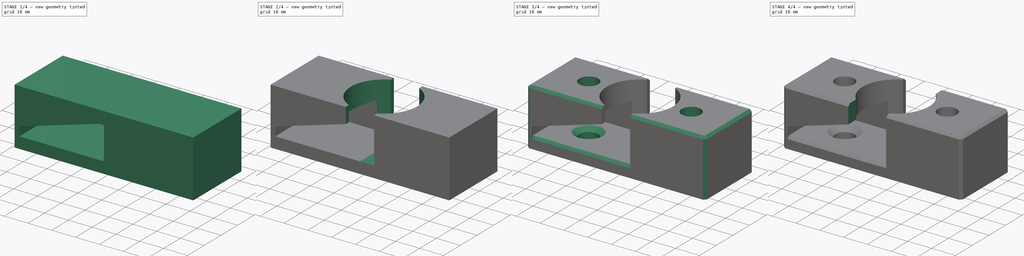
[diagram: build sequence overview — one tinted view per stage of 4, left to right]
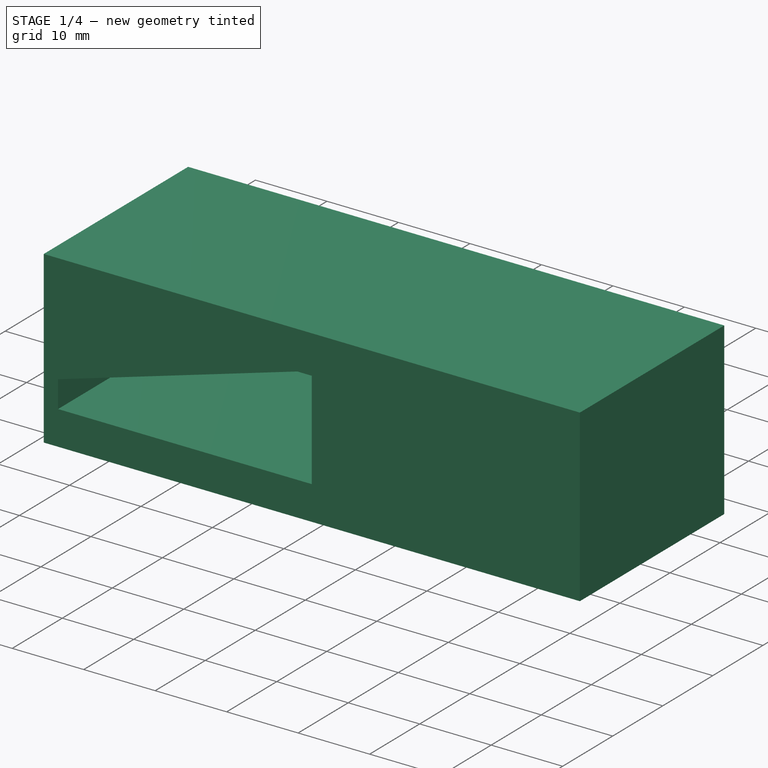
[diagram: stage 1 of 4 — iso view after this stage's code; geometry added in this stage tinted green]
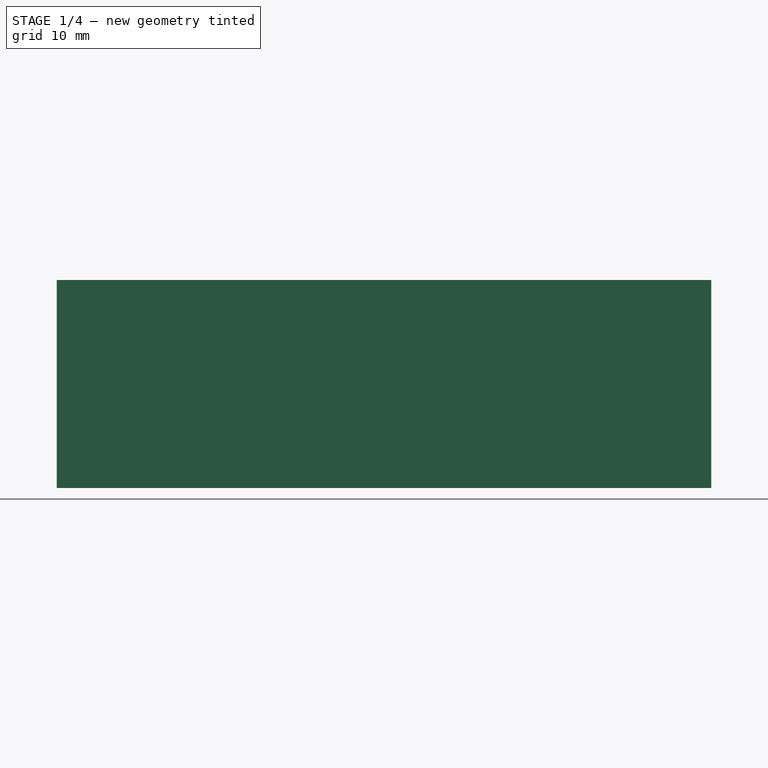
[diagram: stage 1 of 4 — front view after this stage's code; geometry added in this stage tinted green]
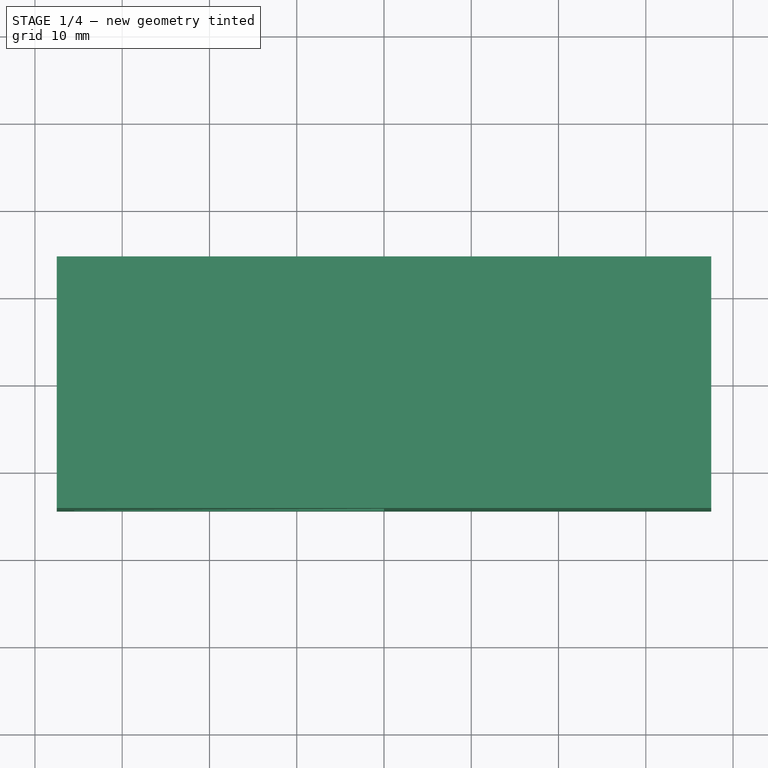
[diagram: stage 1 of 4 — top view after this stage's code; geometry added in this stage tinted green]
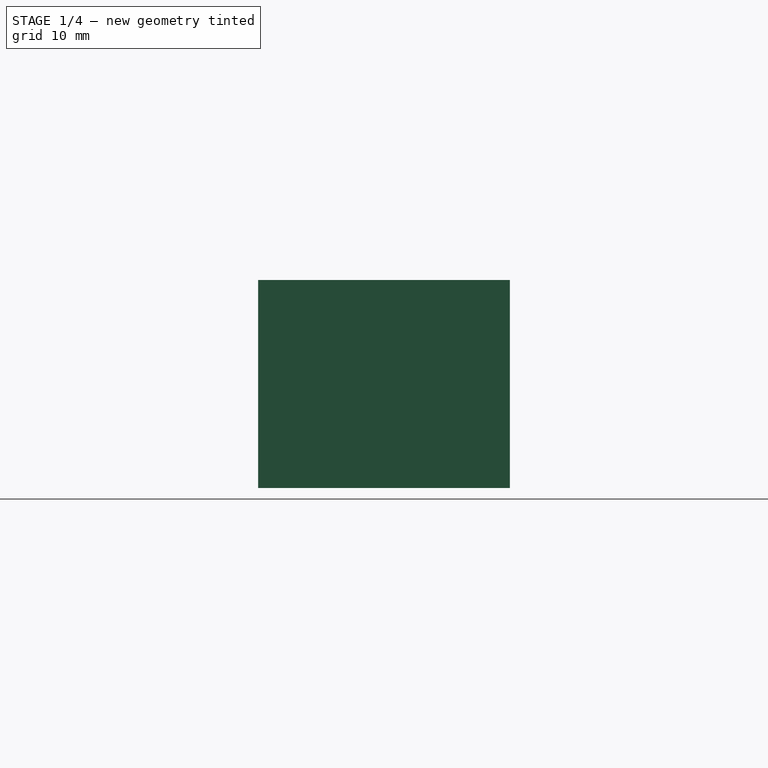
[diagram: stage 1 of 4 — right view after this stage's code; geometry added in this stage tinted green]
FCSTD DOCUMENT  (FreeCAD 0.20R29410 (Git))
Label: Reel_Holder_Symetric_Twist_Parametric
License: All rights reserved
LicenseURL: http://en.wikipedia.org/wiki/All_rights_reserved
objects: Sketcher::SketchObject×8, PartDesign::Pocket×7, PartDesign::Chamfer×2, App::Part×1, PartDesign::Pad×1, Spreadsheet::Sheet×1, PartDesign::Body×1
note: 29 computed .brp shape members not serialized (recipe doc carries the construction recipe); baked Part::Feature solids carry a one-line shape summary decoded from their .brp

FEATURE [App::Part] Part
  Origin = -> Origin
FEATURE [Sketcher::SketchObject] Sketch  label="Sketch_Body"
  FullyConstrained = true
  MapMode = 5
  Support = -> [XY_Plane001]
  expr: Constraints[10] = <<pram>>.Body_Width
  expr: Constraints[9] = <<pram>>.Body_Length
  sketch-geometry (4):
    g0: LineSegment StartX=-37.5 StartY=14.4225 StartZ=0 EndX=37.5 EndY=14.4225 EndZ=0
    g1: LineSegment StartX=37.5 StartY=14.4225 StartZ=0 EndX=37.5 EndY=-14.4225 EndZ=0
    g2: LineSegment StartX=37.5 StartY=-14.4225 StartZ=0 EndX=-37.5 EndY=-14.4225 EndZ=0
    g3: LineSegment StartX=-37.5 StartY=-14.4225 StartZ=0 EndX=-37.5 EndY=14.4225 EndZ=0
  constraints (11):
    c: Coincident(g0,g1)
    c: Coincident(g1,g2)
    c: Coincident(g2,g3)
    c: Coincident(g3,g0)
    c: Horizontal(g0)
    c: Horizontal(g2)
    c: Vertical(g1)
    c: Vertical(g3)
    c: Symmetric(g0,g1,g-1)
    c: DistanceX(g0,g0) = 75
    c: DistanceY(g1,g1) = 28.845
FEATURE [PartDesign::Pad] Pad  label="Pad_Body"
  Direction = (0,0,1)
  Length = 23.845
  Length2 = 10
  Profile = -> Sketch
  ReferenceAxis = -> Sketch [N_Axis]
  Type = 0
  expr: Length = <<pram>>.Body_Height
FEATURE [Sketcher::SketchObject] Sketch001  label="Sketch_Front_Angle_Breach"
  AttachmentOffset = pos=(0,0,-9.6535) rot=(0,0,1;0rad)
  FullyConstrained = true
  MapMode = 5
  Placement = pos=(0,9.6535,2.1e-15) rot=(1,0,0;1.5708rad)
  Support = -> [XZ_Plane001]
  expr: .AttachmentOffset.Base.z = -(<<pram>>.Body_Width / 2 - <<pram>>.Wall_Thickness)
  expr: Constraints[10] = <<pram>>.Body_Height - <<pram>>.Wall_Thickness
  expr: Constraints[11] = <<pram>>.Twist_Opening_Horiz_From_Origin
  expr: Constraints[8] = <<pram>>.Twist_Opening_Vert_Small_Side_Height
  expr: Constraints[9] = <<pram>>.Wall_Thickness
  sketch-geometry (4):
    g0: LineSegment StartX=0 StartY=4.769 StartZ=0 EndX=-35.5 EndY=4.769 EndZ=0
    g1: LineSegment StartX=-35.5 StartY=4.769 StartZ=0 EndX=-35.5 EndY=8.538 EndZ=0
    g2: LineSegment StartX=-35.5 StartY=8.538 StartZ=0 EndX=0 EndY=19.076 EndZ=0
    g3: LineSegment StartX=0 StartY=19.076 StartZ=0 EndX=0 EndY=4.769 EndZ=0
  constraints (12):
    c: PointOnObject(g0,g-2)
    c: Horizontal(g0)
    c: Coincident(g0,g1)
    c: Coincident(g1,g2)
    c: PointOnObject(g2,g-2)
    c: Coincident(g2,g3)
    c: Coincident(g3,g0)
    c: Vertical(g0,g1)
    c: DistanceY(g1,g1) = 3.769
    c: DistanceY(g-1,g0) = 4.769
    c: DistanceY(g-1,g2) = 19.076
    c: DistanceX(g0,g-1) = 35.5
FEATURE [PartDesign::Pocket] Pocket  label="Pocket_Front_Angle_Breach"
  BaseFeature = -> Pad
  Direction = (0,1,2e-16)
  Length = 24.076
  Length2 = 5
  Profile = -> Sketch001
  ReferenceAxis = -> Sketch001 [N_Axis]
  Reversed = true
  Type = 0
  expr: Length = <<pram>>.Body_Width - <<pram>>.Wall_Thickness
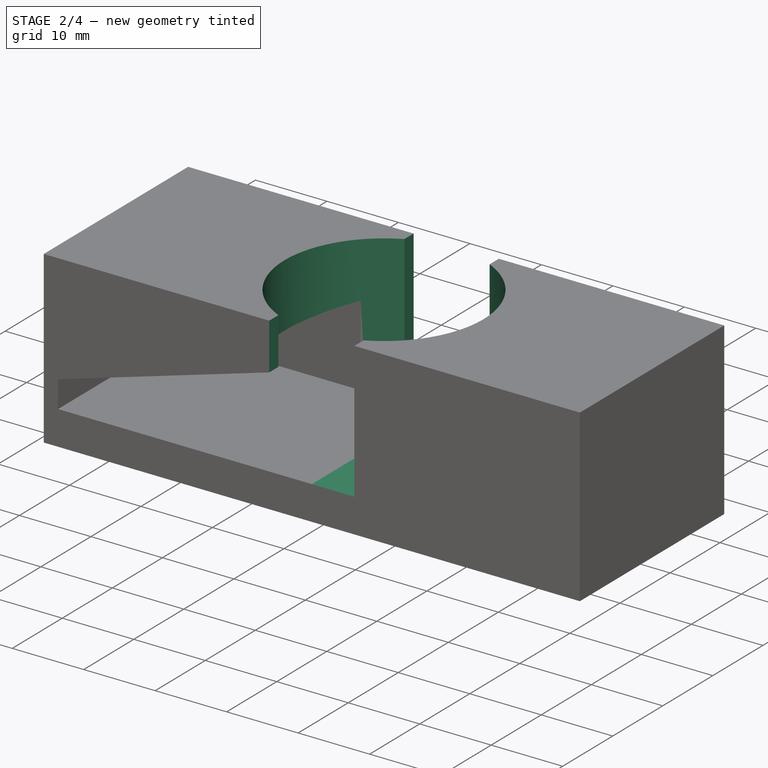
[diagram: stage 2 of 4 — iso view after this stage's code; geometry added in this stage tinted green]
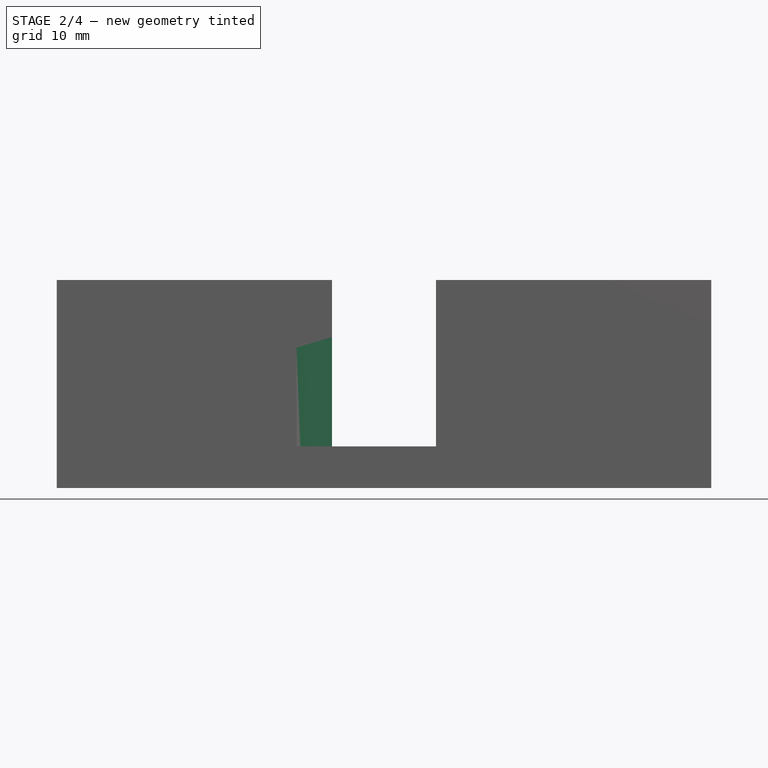
[diagram: stage 2 of 4 — front view after this stage's code; geometry added in this stage tinted green]
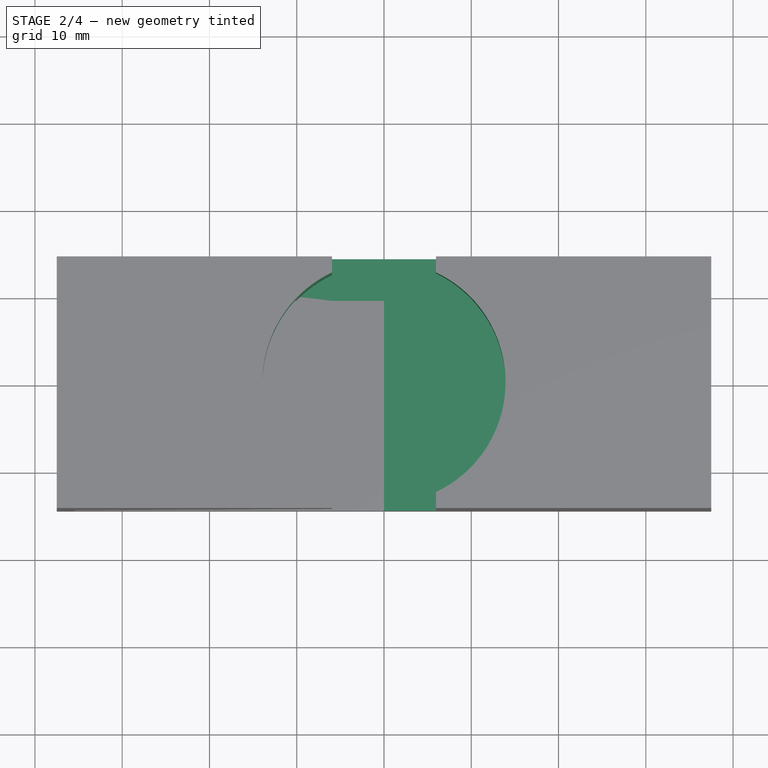
[diagram: stage 2 of 4 — top view after this stage's code; geometry added in this stage tinted green]
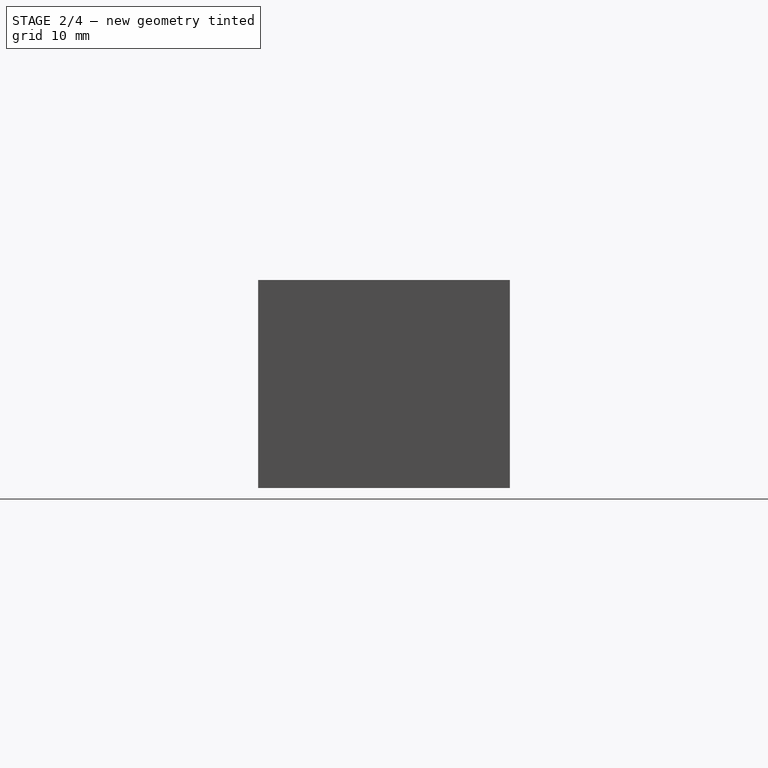
[diagram: stage 2 of 4 — right view after this stage's code; geometry added in this stage tinted green]
FEATURE [Sketcher::SketchObject] Sketch002  label="Sketch_Back_Angle_Breach"
  AttachmentOffset = pos=(0,0,9.6535) rot=(0,0,1;0rad)
  FullyConstrained = true
  MapMode = 5
  Placement = pos=(0,-9.6535,-2.1e-15) rot=(1,0,0;1.5708rad)
  Support = -> [XZ_Plane001]
  expr: .AttachmentOffset.Base.z = <<pram>>.Body_Width / 2 - <<pram>>.Wall_Thickness
  expr: Constraints[10] = <<pram>>.Twist_Opening_Vert_Small_Side_Height
  expr: Constraints[11] = <<pram>>.Twist_Opening_Horiz_From_Origin
  expr: Constraints[8] = <<pram>>.Body_Height - <<pram>>.Wall_Thickness
  expr: Constraints[9] = <<pram>>.Wall_Thickness
  sketch-geometry (4):
    g0: LineSegment StartX=0 StartY=4.769 StartZ=0 EndX=0 EndY=19.076 EndZ=0
    g1: LineSegment StartX=0 StartY=19.076 StartZ=0 EndX=35.5 EndY=8.538 EndZ=0
    g2: LineSegment StartX=35.5 StartY=8.538 StartZ=0 EndX=35.5 EndY=4.769 EndZ=0
    g3: LineSegment StartX=35.5 StartY=4.769 StartZ=0 EndX=0 EndY=4.769 EndZ=0
  constraints (12):
    c: PointOnObject(g0,g-2)
    c: Vertical(g0)
    c: Coincident(g0,g1)
    c: Coincident(g1,g2)
    c: Coincident(g2,g3)
    c: Coincident(g3,g0)
    c: Horizontal(g3)
    c: Vertical(g1,g2)
    c: DistanceY(g-1,g0) = 19.076
    c: DistanceY(g-1,g0) = 4.769
    c: DistanceY(g2,g1) = 3.769
    c: DistanceX(g0,g2) = 35.5
FEATURE [PartDesign::Pocket] Pocket001  label="Pocket_Back_Angle_Breach"
  BaseFeature = -> Pocket
  Direction = (0,1,2e-16)
  Length = 24.076
  Length2 = 5
  Profile = -> Sketch002
  ReferenceAxis = -> Sketch002 [N_Axis]
  Type = 0
  expr: Length = <<pram>>.Body_Width - <<pram>>.Wall_Thickness
FEATURE [Sketcher::SketchObject] Sketch003  label="Sketch_Circular_Opening"
  AttachmentOffset = pos=(0,0,23.845) rot=(0,0,1;0rad)
  FullyConstrained = true
  MapMode = 5
  Placement = pos=(0,0,23.845) rot=(0,0,1;0rad)
  Support = -> [XY_Plane001]
  expr: .AttachmentOffset.Base.z = <<pram>>.Body_Height
  expr: Constraints[1] = <<pram>>.Circular_Opening_Diameter
  sketch-geometry (1):
    g0: Circle CenterX=0 CenterY=0 CenterZ=0 NormalX=0 NormalY=0 NormalZ=1 AngleXU=0 Radius=13.9225
  constraints (2):
    c: Coincident(g0,g-1)
    c: Diameter(g0) = 27.845
FEATURE [PartDesign::Pocket] Pocket002  label="Pocket_Circular_Opening"
  BaseFeature = -> Pocket001
  Direction = (0,0,-1)
  Length = 19.076
  Length2 = 5
  Profile = -> Sketch003
  ReferenceAxis = -> Sketch003 [N_Axis]
  Type = 0
  expr: Length = <<pram>>.Body_Height - <<pram>>.Wall_Thickness
FEATURE [Sketcher::SketchObject] Sketch004  label="Sketch_Through_Cut"
  FullyConstrained = true
  MapMode = 5
  Placement = pos=(0,0,0) rot=(1,0,0;1.5708rad)
  Support = -> [XZ_Plane001]
  expr: Constraints[10] = <<pram>>.Through_Cut_Height
  expr: Constraints[8] = <<pram>>.Wall_Thickness
  expr: Constraints[9] = <<pram>>.Through_Cut_Width
  sketch-geometry (4):
    g0: LineSegment StartX=-5.96125 StartY=23.845 StartZ=0 EndX=5.96125 EndY=23.845 EndZ=0
    g1: LineSegment StartX=5.96125 StartY=23.845 StartZ=0 EndX=5.96125 EndY=4.769 EndZ=0
    g2: LineSegment StartX=5.96125 StartY=4.769 StartZ=0 EndX=-5.96125 EndY=4.769 EndZ=0
    g3: LineSegment StartX=-5.96125 StartY=4.769 StartZ=0 EndX=-5.96125 EndY=23.845 EndZ=0
  constraints (11):
    c: Coincident(g0,g1)
    c: Coincident(g1,g2)
    c: Coincident(g2,g3)
    c: Coincident(g3,g0)
    c: Horizontal(g2)
    c: Vertical(g1)
    c: Vertical(g3)
    c: Symmetric(g0,g0,g-2)
    c: DistanceY(g-1,g1) = 4.769
    c: DistanceX(g0,g0) = 11.9225
    c: DistanceY(g1,g1) = 19.076
FEATURE [PartDesign::Pocket] Pocket003  label="Pocket_Through_Cut"
  BaseFeature = -> Pocket002
  Direction = (0,1,2e-16)
  Length = 14.4225
  Length2 = 5
  Midplane = true
  Profile = -> Sketch004
  ReferenceAxis = -> Sketch004 [N_Axis]
  Type = 1
  expr: Length = <<pram>>.Body_Width / 2
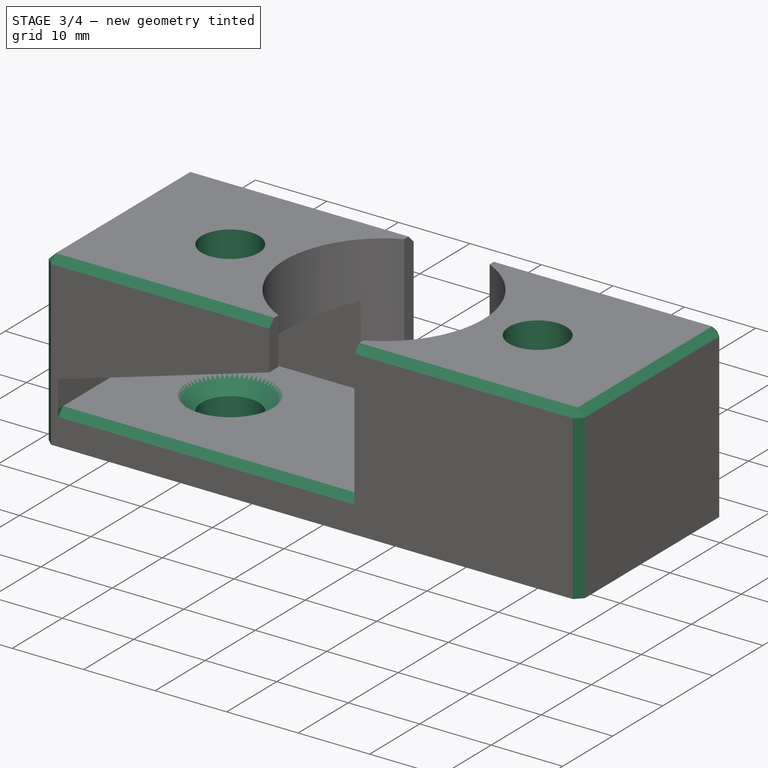
[diagram: stage 3 of 4 — iso view after this stage's code; geometry added in this stage tinted green]
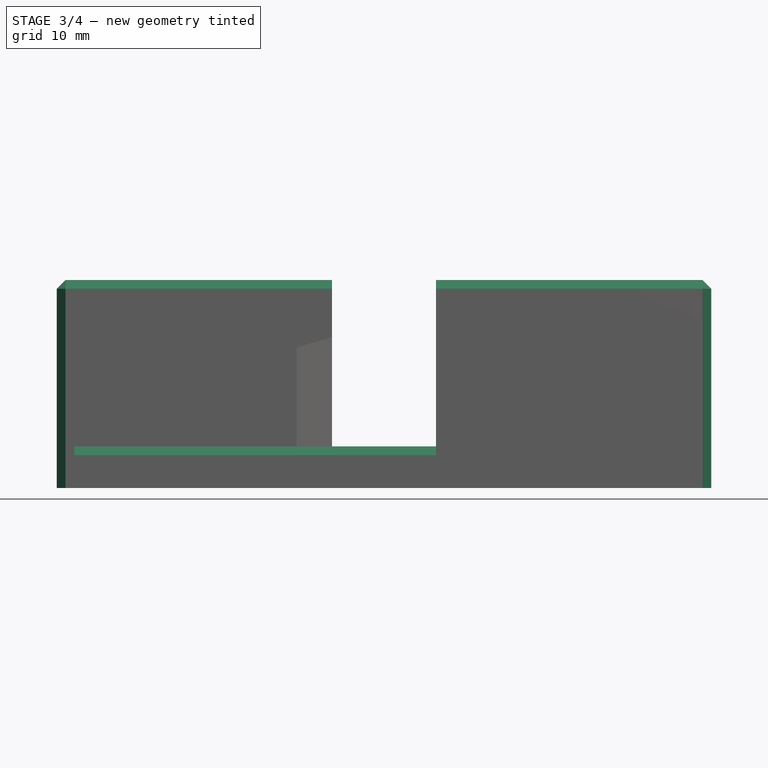
[diagram: stage 3 of 4 — front view after this stage's code; geometry added in this stage tinted green]
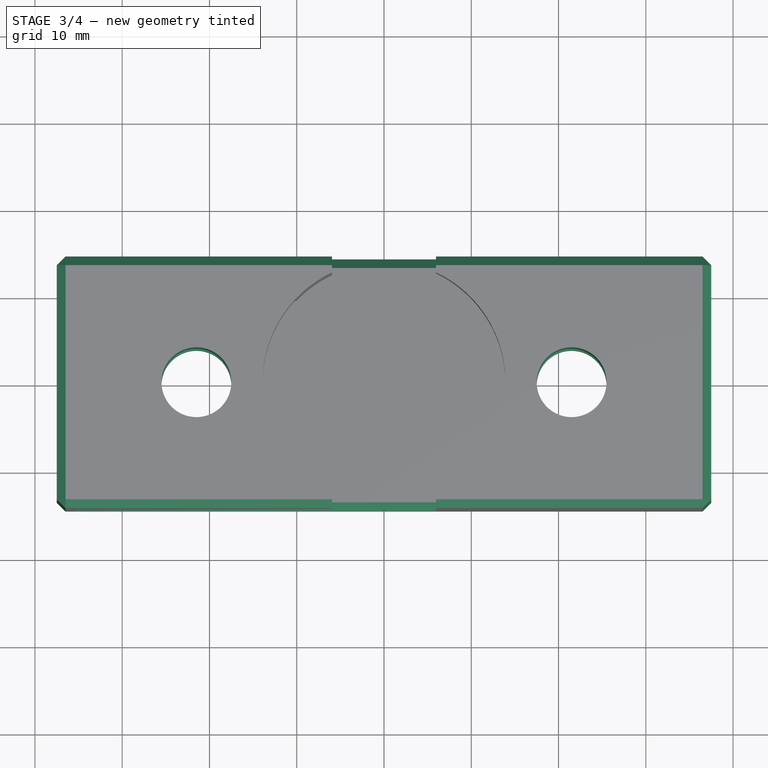
[diagram: stage 3 of 4 — top view after this stage's code; geometry added in this stage tinted green]
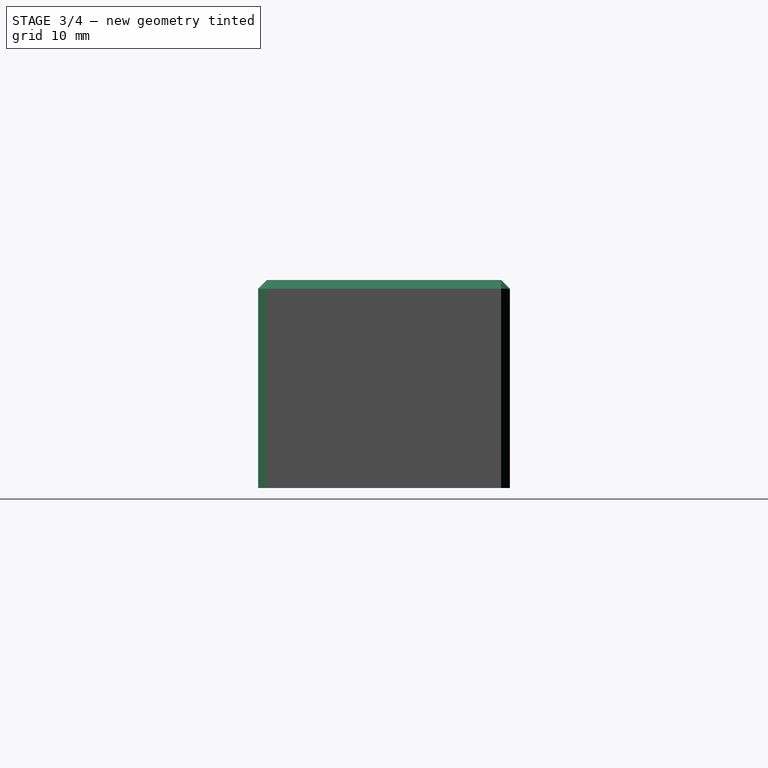
[diagram: stage 3 of 4 — right view after this stage's code; geometry added in this stage tinted green]
FEATURE [Sketcher::SketchObject] Sketch005  label="Sketch_Screw_Holes"
  AttachmentOffset = pos=(0,0,23.845) rot=(0,0,1;0rad)
  FullyConstrained = true
  MapMode = 5
  Placement = pos=(0,0,23.845) rot=(0,0,1;0rad)
  Support = -> [XY_Plane001]
  expr: .AttachmentOffset.Base.z = <<pram>>.Body_Height
  expr: Constraints[2] = <<pram>>.Drill_Holes_Diameter
  expr: Constraints[4] = <<pram>>.Drill_Holes_Horiz_From_Origin + <<pram>>.Drill_Holes_Diameter / 4
  sketch-geometry (2):
    g0: Circle CenterX=-21.5 CenterY=0 CenterZ=0 NormalX=0 NormalY=0 NormalZ=1 AngleXU=0 Radius=4
    g1: Circle CenterX=21.5 CenterY=0 CenterZ=0 NormalX=0 NormalY=0 NormalZ=1 AngleXU=0 Radius=4
  constraints (5):
    c: PointOnObject(g0,g-1)
    c: Equal(g0,g1)
    c: Diameter(g1) = 8
    c: Symmetric(g1,g0,g-1)
    c: DistanceX(g0,g-1) = 21.5
FEATURE [PartDesign::Pocket] Pocket004  label="Pocket_Screw_Holes"
  BaseFeature = -> Pocket003
  Direction = (0,0,-1)
  Length = 5
  Length2 = 5
  Profile = -> Sketch005
  ReferenceAxis = -> Sketch005 [N_Axis]
  Type = 1
FEATURE [Spreadsheet::Sheet] Spreadsheet  label="pram"
  cells = A1=Body_Length (Change This Cell or B11 Only); B1(Body_Length)=75; C1=Safe range should be 50.00mm - 85.00mm. Modeled @ 65.00mm. Inner length will be 4mm less than this Number (B1).; A2=Body_Width; B2(Body_Width)==Body_Length * 0.3846; C2=Calculated. Do not change!; A3=Body_Height; B3(Body_Height)==Body_Width - 5; C3=Calculated. Do not change!; A4=Wall_Thickness; B4(Wall_Thickness)==Body_Height / 5; C4=Calculated. Do not change!; A5=Twist_Opening_Vert_Small_Side_Height; B5(Twist_Opening_Vert_Small_Side_Height)==Wall_Thickness - 1; C5=Calculated. Do not change!; A6=Twist_Opening_Horiz_From_Origin; B6(Twist_Opening_Horiz_From_Origin)==Body_Length / 2 - 2; C6=Calculated. Do not change!; A7=Circular_Opening_Diameter; B7(Circular_Opening_Diameter)==Body_Width - 1; C7=Calculated. Do not change!; A8=Through_Cut_Width; B8(Through_Cut_Width)==Body_Height / 2; C8=Calculated. Do not change!; A9=Through_Cut_Height; B9(Through_Cut_Height)==Body_Height - Wall_Thickness; C9=Calculated. Do not change!; A10=Drill_Holes_Horiz_From_Origin; B10(Drill_Holes_Horiz_From_Origin)==Body_Length / 4 + 0.75; C10=Calculated. Do not change!; A11=Drill_Holes_Diameter (Change This Cell or B1 Only); B11(Drill_Holes_Diameter)=8; C11=Safe Range should be 3mm - 10mm. Modeled @ 6mm.
FEATURE [PartDesign::Chamfer] Chamfer  label="Chamfer_Inside-Screw_Holes"
  Angle = 45
  Base = -> Pocket004 [Edge59,Edge39]
  BaseFeature = -> Pocket004
  ChamferType = 0
  FlipDirection = false
  Size = 2
  Size2 = 1
  SupportTransform = false
  UseAllEdges = false
  expr: Size = <<pram>>.Drill_Holes_Diameter * 0.25
FEATURE [PartDesign::Chamfer] Chamfer001  label="Chamfer_Top_and_Corners"
  Angle = 45
  Base = -> Chamfer [Edge19,Edge25,Edge51,Edge60,Edge59,Edge48,Edge5,Edge77,Edge64,Edge18,Edge47,Edge26]
  BaseFeature = -> Chamfer
  ChamferType = 0
  FlipDirection = false
  Size = 1
  Size2 = 1
  SupportTransform = false
  UseAllEdges = false
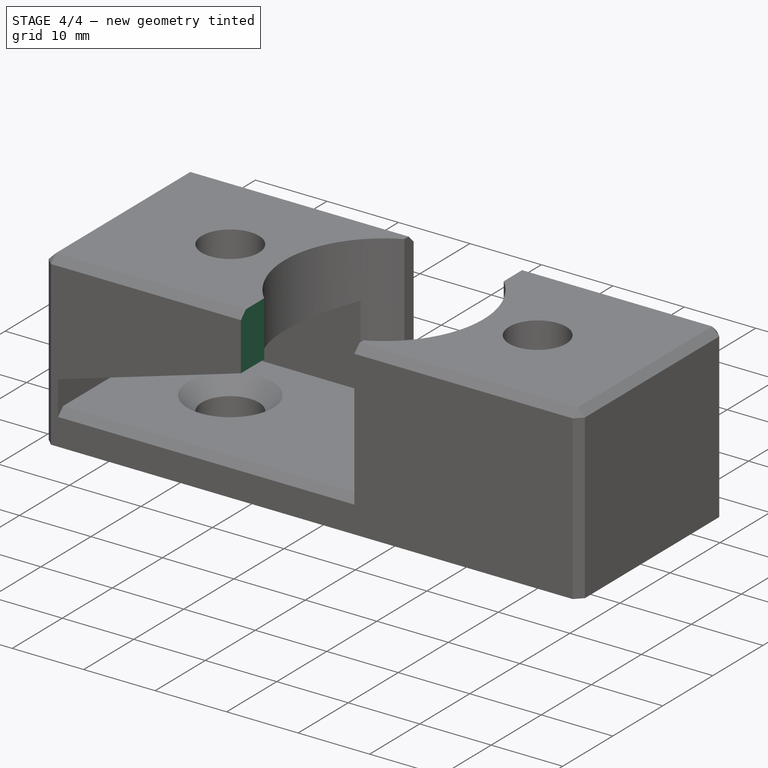
[diagram: stage 4 of 4 — iso view after this stage's code; geometry added in this stage tinted green]
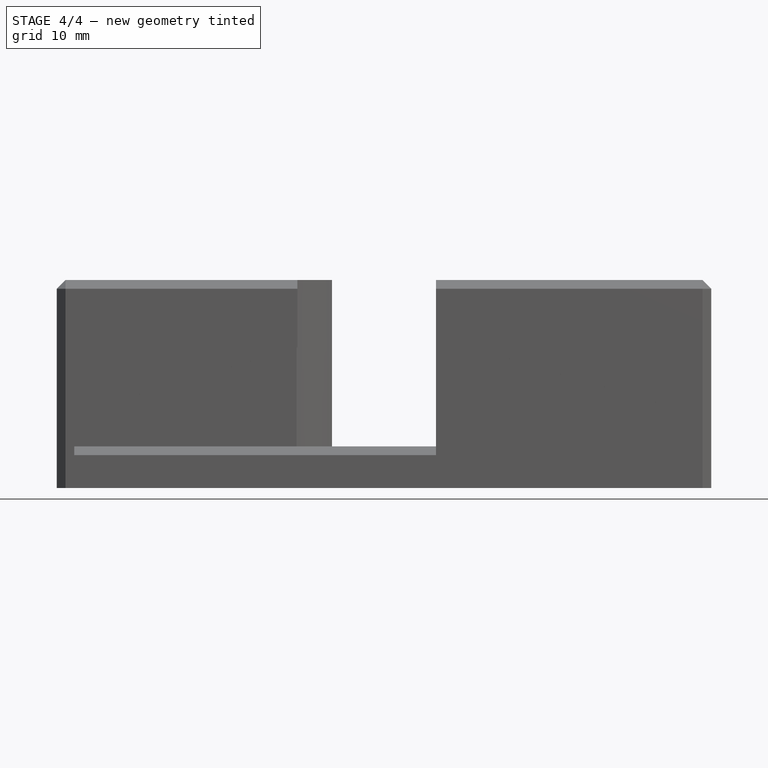
[diagram: stage 4 of 4 — front view after this stage's code; geometry added in this stage tinted green]
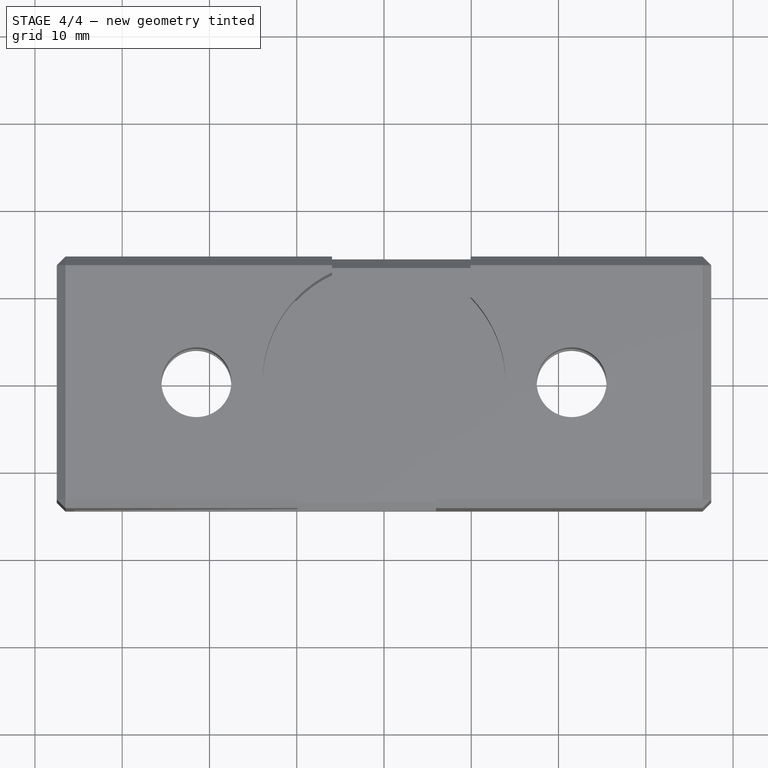
[diagram: stage 4 of 4 — top view after this stage's code; geometry added in this stage tinted green]
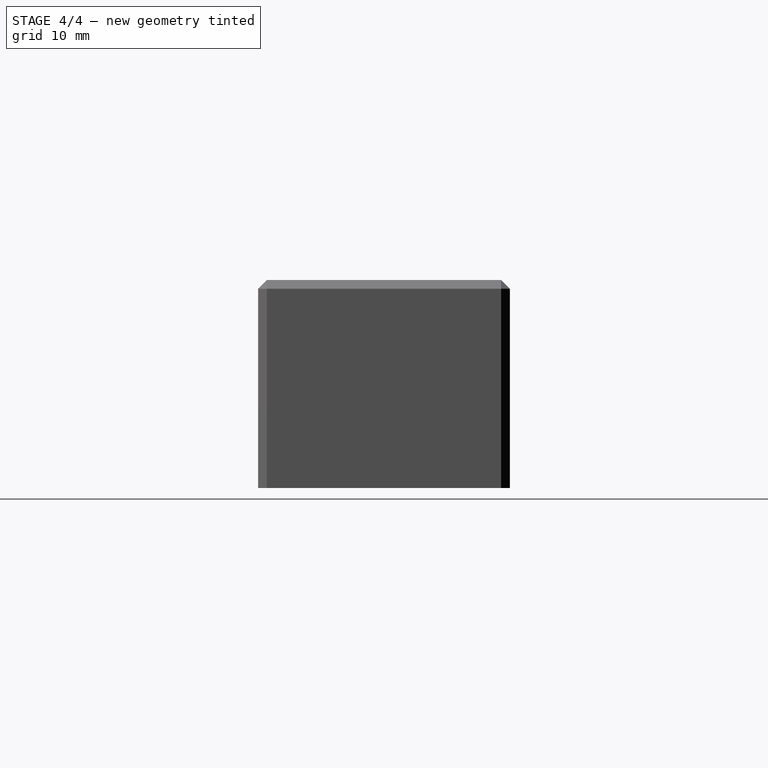
[diagram: stage 4 of 4 — right view after this stage's code; geometry added in this stage tinted green]
FEATURE [Sketcher::SketchObject] Sketch006
  FullyConstrained = true
  MapMode = 5
  Placement = pos=(0,0,0) rot=(1,0,0;1.5708rad)
  Support = -> [XZ_Plane001]
  expr: Constraints[10] = <<pram>>.Through_Cut_Width / 2 - 1
  expr: Constraints[11] = <<pram>>.Twist_Opening_Vert_Small_Side_Height + <<pram>>.Through_Cut_Width / 2
  expr: Constraints[8] = <<pram>>.Through_Cut_Width / 2 - 1
  expr: Constraints[9] = <<pram>>.Body_Height + 1
  sketch-geometry (4):
    g0: LineSegment StartX=-4.96125 StartY=15.1147 StartZ=0 EndX=-9.9225 EndY=15.1147 EndZ=0
    g1: LineSegment StartX=-9.9225 StartY=15.1147 StartZ=0 EndX=-9.9225 EndY=24.845 EndZ=0
    g2: LineSegment StartX=-9.9225 StartY=24.845 StartZ=0 EndX=-4.96125 EndY=24.845 EndZ=0
    g3: LineSegment StartX=-4.96125 StartY=24.845 StartZ=0 EndX=-4.96125 EndY=15.1147 EndZ=0
  constraints (12):
    c: Coincident(g0,g1)
    c: Coincident(g1,g2)
    c: Coincident(g2,g3)
    c: Coincident(g3,g0)
    c: Horizontal(g0)
    c: Horizontal(g2)
    c: Vertical(g1)
    c: Vertical(g3)
    c: DistanceX(g0,g-1) = 4.96125
    c: DistanceY(g-1,g2) = 24.845
    c: DistanceX(g2,g2) = 4.96125
    c: DistanceY(g3,g3) = 9.73025
FEATURE [PartDesign::Pocket] Pocket005  label="Pocket_Side_1_Removal_For_Stem"
  BaseFeature = -> Chamfer001
  Direction = (0,1,2e-16)
  Length = 29.845
  Length2 = 5
  Profile = -> Sketch006
  ReferenceAxis = -> Sketch006 [N_Axis]
  Reversed = true
  Type = 0
  expr: Length = <<pram>>.Body_Width + 1
FEATURE [Sketcher::SketchObject] Sketch007
  FullyConstrained = true
  MapMode = 5
  Placement = pos=(0,0,0) rot=(1,0,0;1.5708rad)
  Support = -> [XZ_Plane001]
  expr: Constraints[10] = <<pram>>.Through_Cut_Width / 2 - 1
  expr: Constraints[11] = <<pram>>.Body_Height + 1
  expr: Constraints[8] = <<pram>>.Through_Cut_Width / 2 - 1
  expr: Constraints[9] = <<pram>>.Twist_Opening_Vert_Small_Side_Height + <<pram>>.Through_Cut_Width / 2
  sketch-geometry (4):
    g0: LineSegment StartX=4.96125 StartY=24.845 StartZ=0 EndX=9.9225 EndY=24.845 EndZ=0
    g1: LineSegment StartX=9.9225 StartY=24.845 StartZ=0 EndX=9.9225 EndY=15.1147 EndZ=0
    g2: LineSegment StartX=9.9225 StartY=15.1147 StartZ=0 EndX=4.96125 EndY=15.1147 EndZ=0
    g3: LineSegment StartX=4.96125 StartY=15.1147 StartZ=0 EndX=4.96125 EndY=24.845 EndZ=0
  constraints (12):
    c: Coincident(g0,g1)
    c: Coincident(g1,g2)
    c: Coincident(g2,g3)
    c: Coincident(g3,g0)
    c: Horizontal(g0)
    c: Horizontal(g2)
    c: Vertical(g1)
    c: Vertical(g3)
    c: DistanceX(g-1,g2) = 4.96125
    c: DistanceY(g3,g3) = 9.73025
    c: DistanceX(g0,g0) = 4.96125
    c: DistanceY(g-1,g0) = 24.845
FEATURE [PartDesign::Pocket] Pocket006  label="Pocket_Side_2_Removal_For_Stem"
  BaseFeature = -> Pocket005
  Direction = (0,1,2e-16)
  Length = 29.845
  Length2 = 5
  Profile = -> Sketch007
  ReferenceAxis = -> Sketch007 [N_Axis]
  Type = 0
  expr: Length = <<pram>>.Body_Width + 1
FEATURE [PartDesign::Body] Body
  Group = -> [Sketch,Pad,Sketch001,Pocket,Sketch002,Pocket001,Sketch003,Pocket002,Sketch004,Pocket003,Sketch005,Pocket004,Chamfer,Chamfer001,Sketch006,Pocket005,Sketch007,Pocket006]
  Origin = -> Origin001
  Tip = -> Pocket006
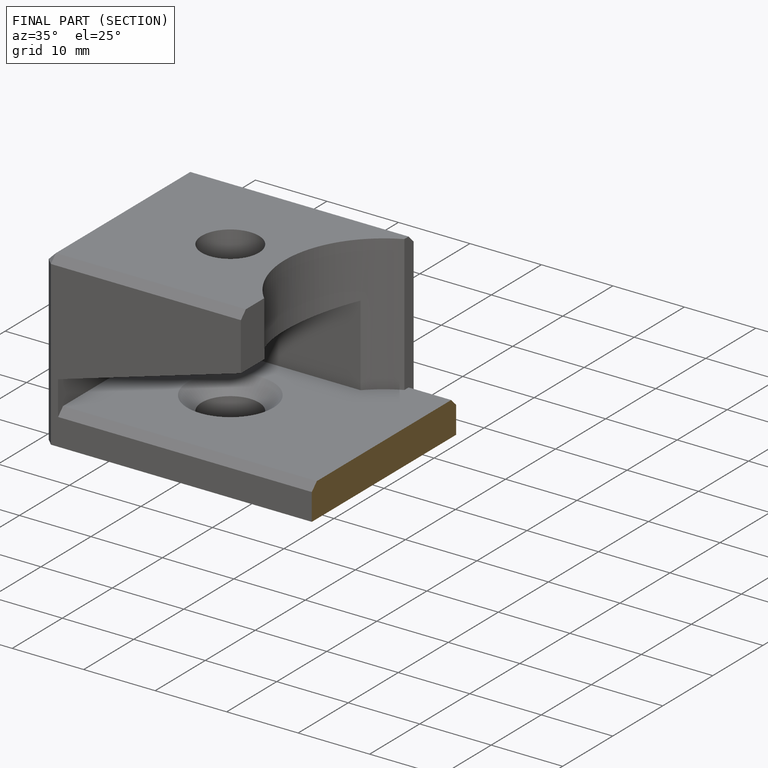
[diagram: finished part — half-section view (interior)]
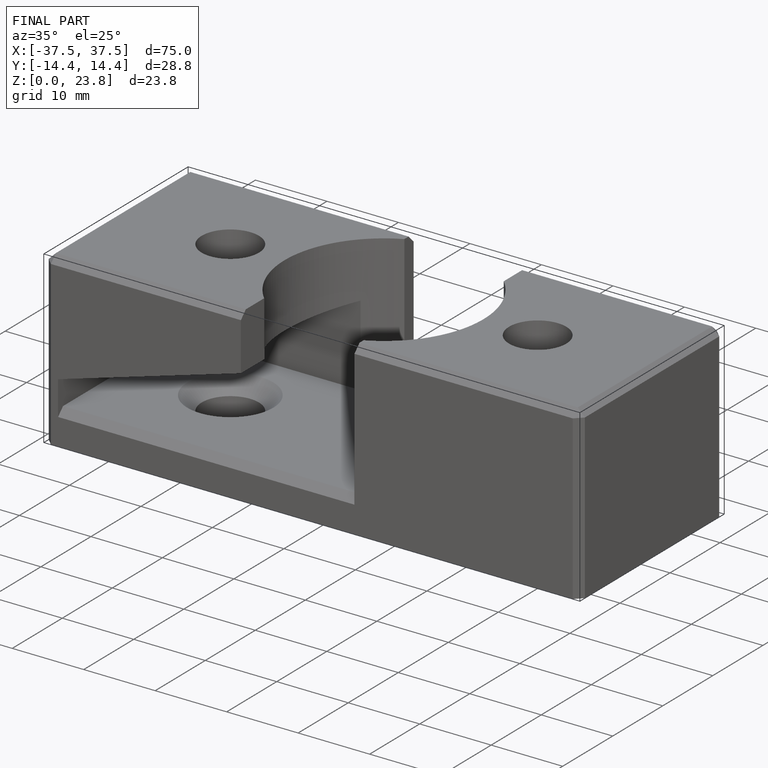
[diagram: finished part — iso view with bounding-box wireframe]
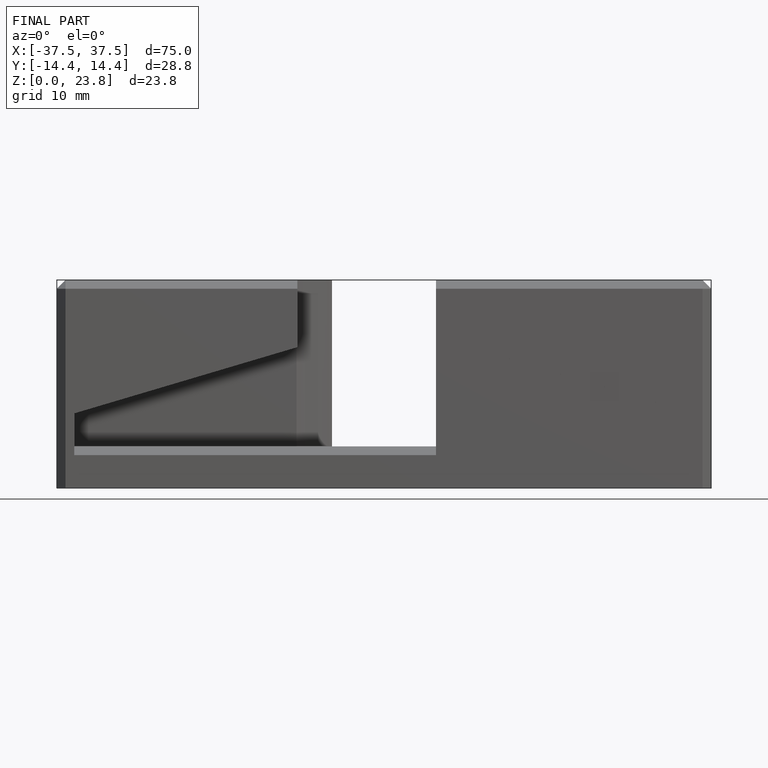
[diagram: finished part — front view with bounding-box wireframe]
